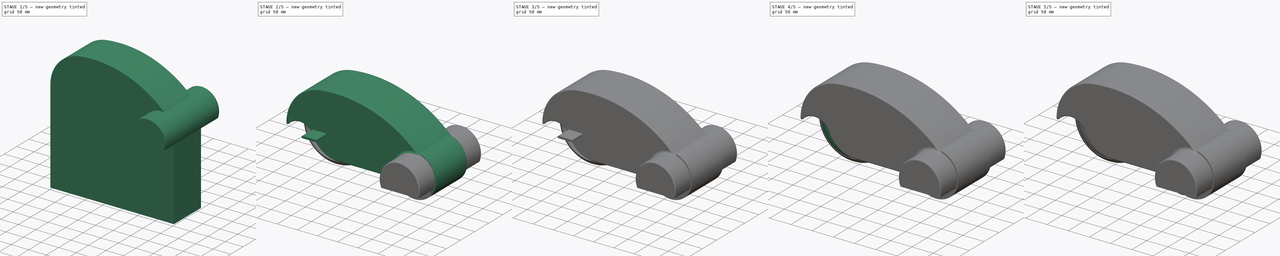
[diagram: build sequence overview — one tinted view per stage of 5, left to right]
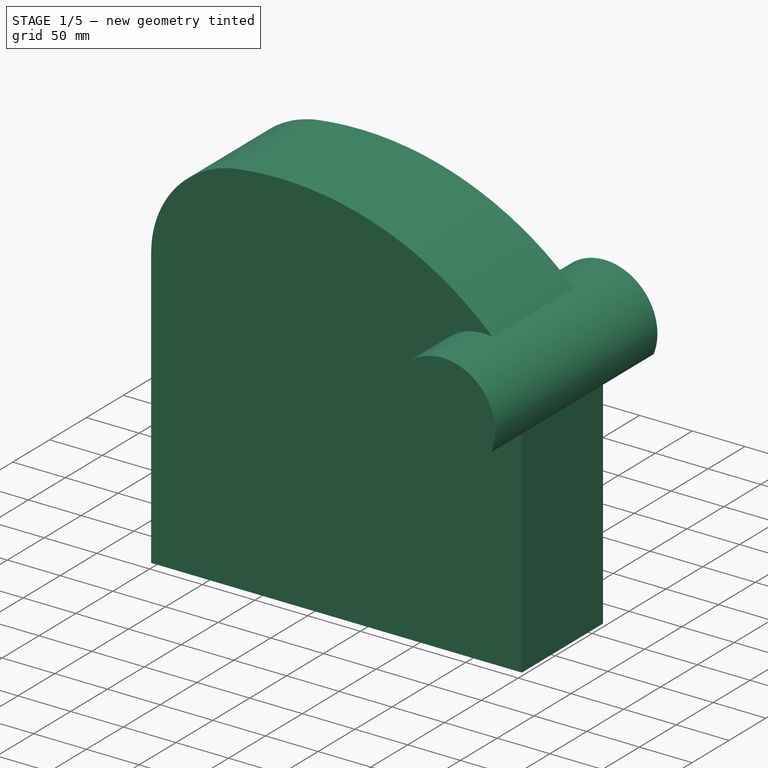
[diagram: stage 1 of 5 — iso view after this stage's code; geometry added in this stage tinted green]
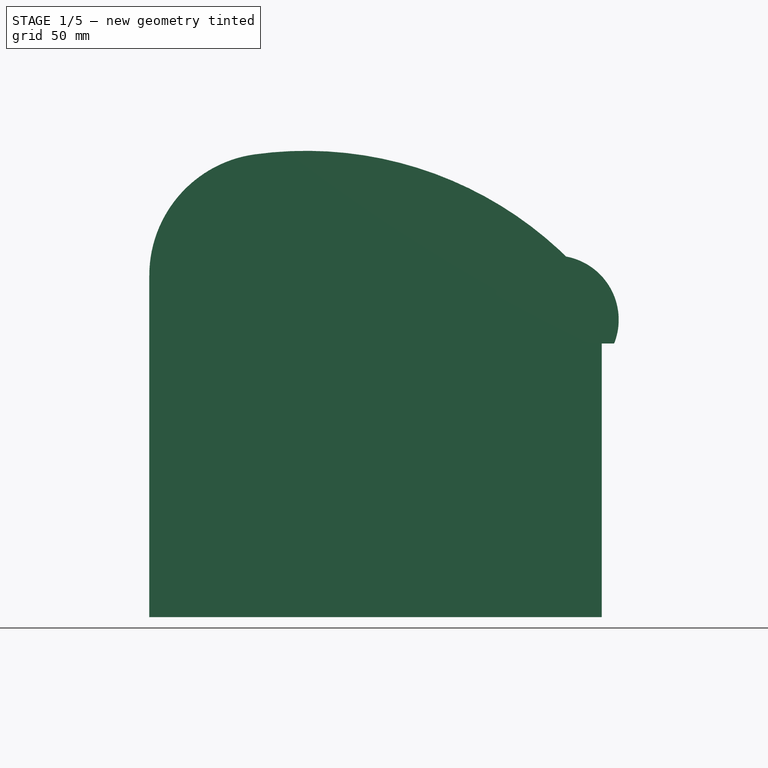
[diagram: stage 1 of 5 — front view after this stage's code; geometry added in this stage tinted green]
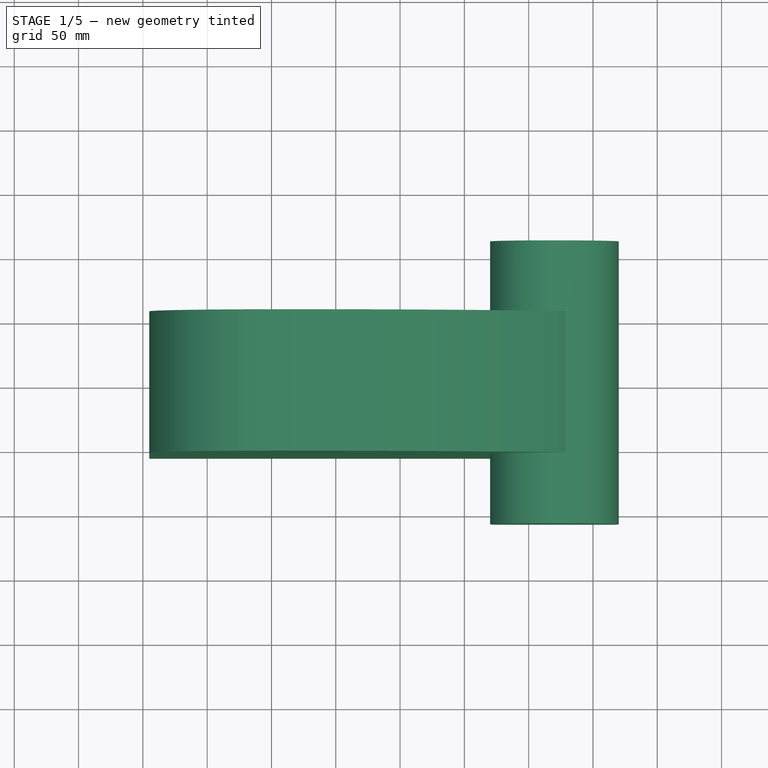
[diagram: stage 1 of 5 — top view after this stage's code; geometry added in this stage tinted green]
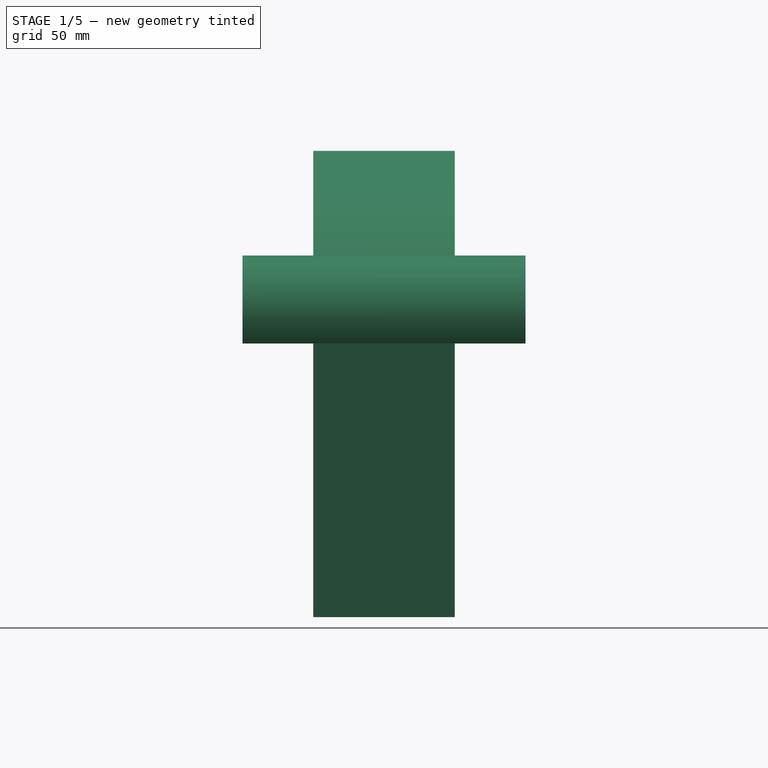
[diagram: stage 1 of 5 — right view after this stage's code; geometry added in this stage tinted green]
FCSTD DOCUMENT  (FreeCAD 0.16R6597 (Git))
Label: ameisin
License: All rights reserved
LicenseURL: http://en.wikipedia.org/wiki/All_rights_reserved
objects: Part::Cut×26, Part::Cylinder×25, Part::MultiFuse×16, Sketcher::SketchObject×14, PartDesign::Pad×14, Part::FeaturePython×9, Part::Box×9, Part::Fillet×8, Part::Mirroring×6, Part::Feature×3, Part::Torus×2, Part::MultiCommon×1, Part::Offset×1
note: 148 computed .brp shape members not serialized (recipe doc carries the construction recipe); baked Part::Feature solids carry a one-line shape summary decoded from their .brp

FEATURE [Part::Feature] Pocket006  label="MOTOR_1"
  Placement = pos=(123,-38.5,0) rot=(0,0,1;0rad)
  shape: bbox 25 x 73.5 x 25 mm, 17 faces (baked)
FEATURE [Part::Torus] Torus  label="Toro"
  Angle1 = -180
  Angle2 = 180
  Angle3 = 360
  Placement = pos=(0,0,0) rot=(1,0,0;1.5708rad)
  Radius1 = 50
  Radius2 = 35
FEATURE [Part::Cylinder] Cylinder  label="Cilindro"
  Angle = 360
  Height = 70
  Placement = pos=(0,35,0) rot=(1,0,0;1.5708rad)
  Radius = 50
FEATURE [Part::MultiFuse] Fusion
  Shapes = -> [Torus,Cylinder]
FEATURE [Sketcher::SketchObject] Sketch012
  Placement = pos=(0,0,0) rot=(1,0,0;1.5708rad)
  sketch-geometry (8):
    g0: ArcOfCircle CenterX=0 CenterY=0 CenterZ=0 NormalX=0 NormalY=0 NormalZ=1 Radius=95 StartAngle=1.709 EndAngle=3.14159
    g1: ArcOfCircle CenterX=220 CenterY=-34.5 CenterZ=0 NormalX=0 NormalY=0 NormalZ=1 Radius=40 StartAngle=5.88527 EndAngle=6.9652
    g2: ArcOfCircle CenterX=26.863 CenterY=-193.141 CenterZ=0 NormalX=0 NormalY=0 NormalZ=1 Radius=290 StartAngle=0.776078 EndAngle=1.70899
    g3: ArcOfCircle CenterX=37.568 CenterY=-182.634 CenterZ=0 NormalX=0 NormalY=0 NormalZ=1 Radius=275 StartAngle=0.682011 EndAngle=0.776078
    g4: ArcOfCircle CenterX=-64.8684 CenterY=-26.3076 CenterZ=0 NormalX=0 NormalY=0 NormalZ=1 Radius=40 StartAngle=0.385284 EndAngle=2.42385
    g5: Circle [constr] CenterX=0 CenterY=0 CenterZ=0 NormalX=0 NormalY=0 NormalZ=1 Radius=30
    g6: ArcOfCircle CenterX=29.6932 CenterY=12.0422 CenterZ=0 NormalX=0 NormalY=0 NormalZ=1 Radius=62.0422 StartAngle=3.52688 EndAngle=4.71239
    g7: LineSegment StartX=29.6932 StartY=-50 StartZ=0 EndX=256.875 EndY=-50 EndZ=0
  constraints (28):
    c: Coincident(g0,g-1)
    c: Coincident(g0,g2)
    c: Tangent(g2,g0)
    c: Radius(g0) = 95
    c: Coincident(g2,g3)
    c: Coincident(g1,g3)
    c: Tangent(g3,g1)
    c: DistanceY(g1) = -34.5
    c: DistanceX(g1) = 220
    c: Tangent(g3,g2)
    c: Radius(g3) = 275
    c: Radius(g2) = 290
    c: Radius(g1) = 40
    c: Coincident(g0,g4)
    c: PointOnObject(g0,g-1)
    c: Coincident(g5,g-1)
    c: Radius(g5) = 30
    c: Tangent(g4,g5)
    c: DistanceY(g1) = -50
    c: Coincident(g6,g4)
    c: Tangent(g6,g4)
    c: Coincident(g7,g6)
    c: Coincident(g7,g1)
    c: Horizontal(g7)
    c: Tangent(g7,g6)
    c: Tangent(g6,g5)
    c: Radius(g4) = 40
    c: DistanceY(g2) = 10
FEATURE [PartDesign::Pad] Pad015
  Length = 110
  Length2 = 100
  Midplane = true
  Placement = pos=(0,0,0) rot=(1,0,0;1.5708rad)
  Sketch = -> Sketch012
  Type = 0
FEATURE [Part::FeaturePython] Clone006  label="Clone of Pad015"  # Draft clone (typed FeaturePython)
  Objects = -> [Pad015]
  Placement = pos=(0,0,0) rot=(1,0,0;1.5708rad)
  Scale = (1,1,1)
FEATURE [Sketcher::SketchObject] Sketch013
  Placement = pos=(0,0,0) rot=(1,0,0;1.5708rad)
  sketch-geometry (11):
    g0: ArcOfCircle [constr] CenterX=0 CenterY=0 CenterZ=0 NormalX=0 NormalY=0 NormalZ=1 Radius=95 StartAngle=1.709 EndAngle=3.14159
    g1: ArcOfCircle [constr] CenterX=220 CenterY=-34.5 CenterZ=0 NormalX=0 NormalY=0 NormalZ=1 Radius=40 StartAngle=5.88527 EndAngle=6.9652
    g2: ArcOfCircle [constr] CenterX=26.863 CenterY=-193.141 CenterZ=0 NormalX=0 NormalY=0 NormalZ=1 Radius=290 StartAngle=0.776078 EndAngle=1.70899
    g3: ArcOfCircle [constr] CenterX=37.568 CenterY=-182.634 CenterZ=0 NormalX=0 NormalY=0 NormalZ=1 Radius=275 StartAngle=0.682011 EndAngle=0.776078
    g4: ArcOfCircle CenterX=-64.8684 CenterY=-26.3076 CenterZ=0 NormalX=0 NormalY=0 NormalZ=1 Radius=40 StartAngle=0.385284 EndAngle=2.42385
    g5: Circle [constr] CenterX=0 CenterY=0 CenterZ=0 NormalX=0 NormalY=0 NormalZ=1 Radius=30
    g6: ArcOfCircle CenterX=29.6932 CenterY=12.0422 CenterZ=0 NormalX=0 NormalY=0 NormalZ=1 Radius=62.0422 StartAngle=3.52688 EndAngle=4.71239
    g7: LineSegment StartX=29.6932 StartY=-50 StartZ=0 EndX=256.875 EndY=-50 EndZ=0
    g8: LineSegment StartX=-95 StartY=-2e-11 StartZ=0 EndX=-95 EndY=-265.777 EndZ=0
    g9: LineSegment StartX=-95 StartY=-265.777 StartZ=0 EndX=256.875 EndY=-265.777 EndZ=0
    g10: LineSegment StartX=256.875 StartY=-265.777 StartZ=0 EndX=256.875 EndY=-50 EndZ=0
  constraints (35):
    c: Coincident(g0,g-1)
    c: Coincident(g0,g2)
    c: Tangent(g2,g0)
    c: Radius(g0) = 95
    c: Coincident(g2,g3)
    c: Coincident(g1,g3)
    c: Tangent(g3,g1)
    c: DistanceY(g1) = -34.5
    c: DistanceX(g1) = 220
    c: Tangent(g3,g2)
    c: Radius(g3) = 275
    c: Radius(g2) = 290
    c: Radius(g1) = 40
    c: Coincident(g0,g4)
    c: PointOnObject(g0,g-1)
    c: Coincident(g5,g-1)
    c: Radius(g5) = 30
    c: Tangent(g4,g5)
    c: DistanceY(g1) = -50
    c: Coincident(g6,g4)
    c: Tangent(g6,g4)
    c: Coincident(g7,g6)
    c: Coincident(g7,g1)
    c: Horizontal(g7)
    c: Tangent(g7,g6)
    c: Tangent(g6,g5)
    c: Radius(g4) = 40
    c: DistanceY(g2) = 10
    c: Coincident(g8,g9)
    c: Horizontal(g9)
    c: Coincident(g9,g10)
    c: Vertical(g10)
    c: Vertical(g8)
    c: Coincident(g0,g8)
    c: Coincident(g1,g10)
FEATURE [PartDesign::Pad] Pad016
  Length = 110
  Length2 = 100
  Midplane = true
  Placement = pos=(0,0,0) rot=(1,0,0;1.5708rad)
  Sketch = -> Sketch013
  Type = 0
FEATURE [Part::Cylinder] Cylinder026  label="Cilindro026"
  Angle = 360
  Height = 214
  Placement = pos=(220,107,-34.5) rot=(1,0,0;1.5708rad)
  Radius = 47
FEATURE [Part::Cylinder] Cylinder025  label="Cilindro025"
  Angle = 360
  Height = 220
  Placement = pos=(220,110,-34.5) rot=(1,0,0;1.5708rad)
  Radius = 50
FEATURE [Part::Cut] Cut023
  Base = -> Cylinder025
  Tool = -> Cylinder026
FEATURE [Part::Box] Box016  label="Cubo008"
  Height = 86
  Length = 400
  Placement = pos=(0,-137,-139) rot=(0,0,1;0rad)
  Width = 400
FEATURE [Part::Cut] Cut026
  Base = -> Cut023
  Tool = -> Box016
FEATURE [Part::FeaturePython] Clone007  label="Clone of Clone of Pad015"  # Draft clone (typed FeaturePython)
  Objects = -> [Clone006]
  Placement = pos=(0,0,0) rot=(1,0,0;1.5708rad)
  Scale = (1,1,1)
FEATURE [Part::FeaturePython] Clone008  label="Clone of Pad016"  # Draft clone (typed FeaturePython)
  Objects = -> [Pad016]
  Placement = pos=(0,0,0) rot=(1,0,0;1.5708rad)
  Scale = (1,1,1)
FEATURE [Part::MultiFuse] Fusion019
  Shapes = -> [Clone008,Clone007]
FEATURE [Part::Torus] Torus001  label="Toro001"
  Angle1 = -180
  Angle2 = 180
  Angle3 = 360
  Placement = pos=(0,0,0) rot=(1,0,0;1.5708rad)
  Radius1 = 50
  Radius2 = 36
FEATURE [Part::Cylinder] Cylinder029  label="Cilindro029"
  Angle = 360
  Height = 86
  Placement = pos=(0,42,0) rot=(1,0,0;1.5708rad)
  Radius = 60
FEATURE [Part::FeaturePython] Clone009  label="Clone of Fusion"  # Draft clone (typed FeaturePython)
  Objects = -> [Fusion]
  Scale = (1,1,1)
FEATURE [Part::Cut] Cut028
  Base = -> Torus001
  Tool = -> Cylinder029
FEATURE [Part::Cut] Cut029
  Base = -> Cut028
  Tool = -> Clone009
FEATURE [Part::Cylinder] Cylinder030  label="Cilindro030"
  Angle = 360
  Height = 86
  Placement = pos=(0,-30,0) rot=(1,0,0;1.5708rad)
  Radius = 100
FEATURE [Part::Mirroring] Part__Mirroring005  label="Cilindro030 (Mirror #6)"
  Base = (0,0,0)
  Normal = (0,1,0)
  Source = -> Cylinder030
FEATURE [Part::MultiFuse] Fusion021
  Shapes = -> [Part__Mirroring005,Cylinder030]
FEATURE [Part::Cut] Cut030
  Base = -> Cut029
  Tool = -> Fusion021
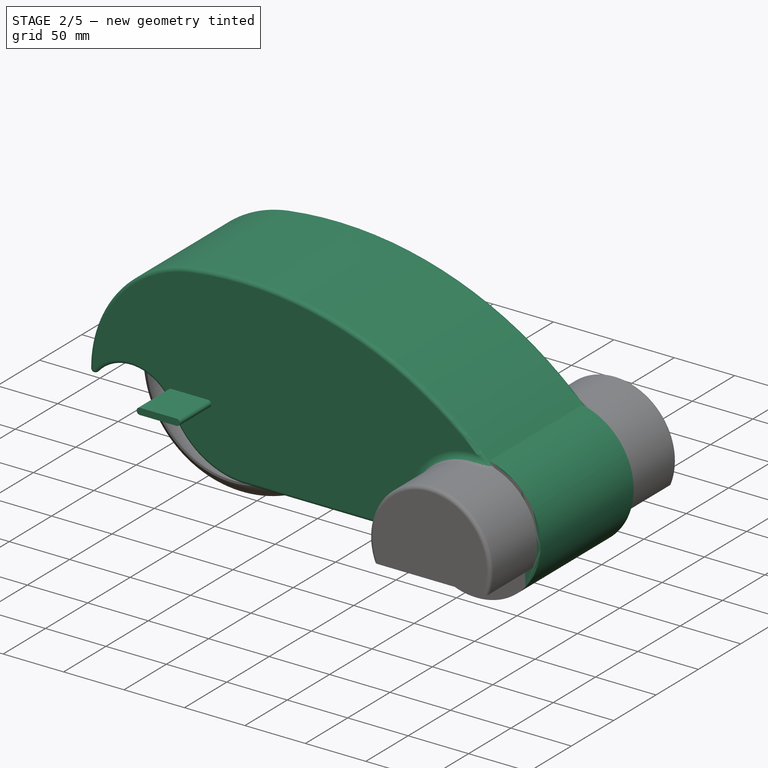
[diagram: stage 2 of 5 — iso view after this stage's code; geometry added in this stage tinted green]
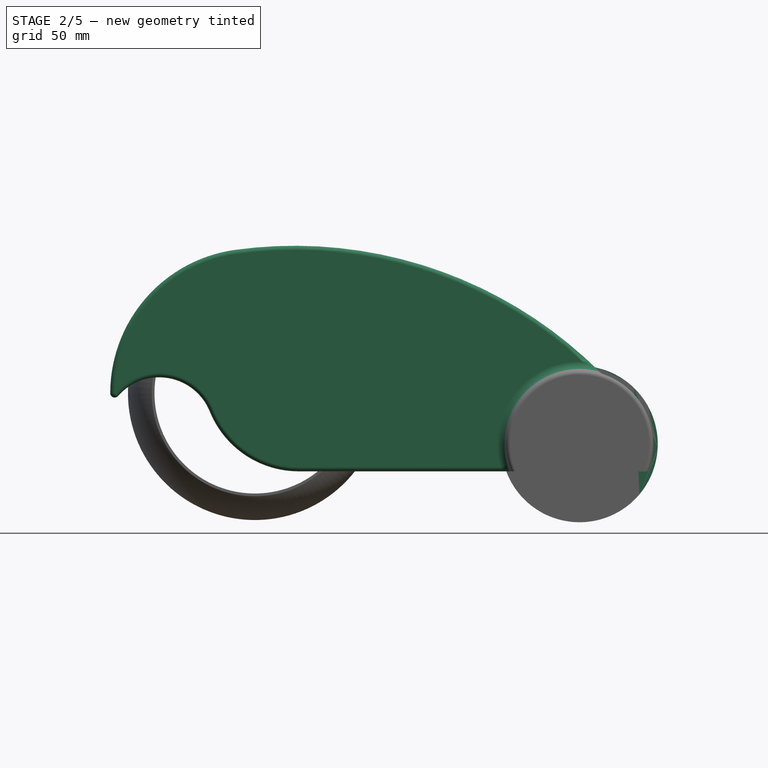
[diagram: stage 2 of 5 — front view after this stage's code; geometry added in this stage tinted green]
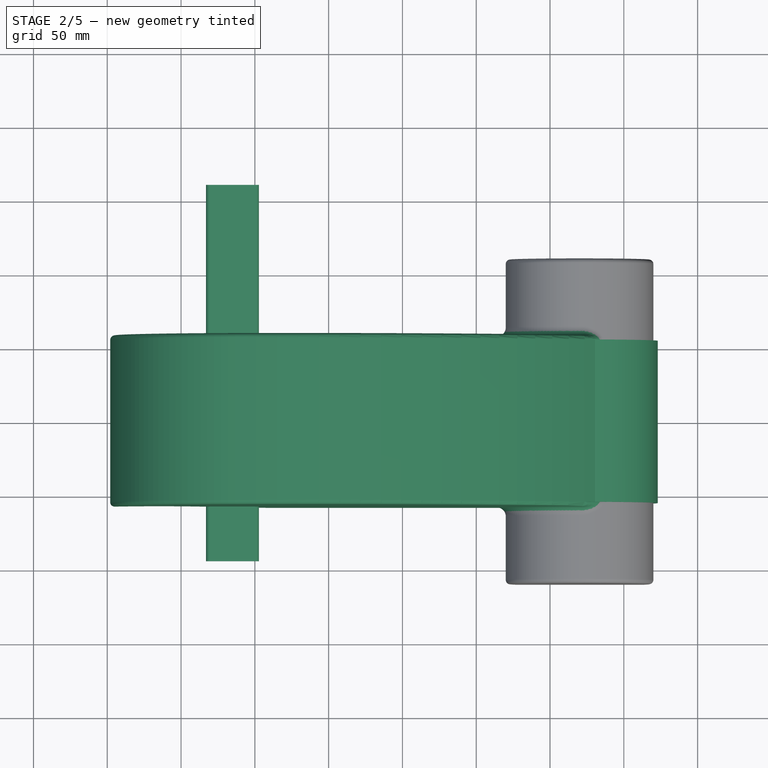
[diagram: stage 2 of 5 — top view after this stage's code; geometry added in this stage tinted green]
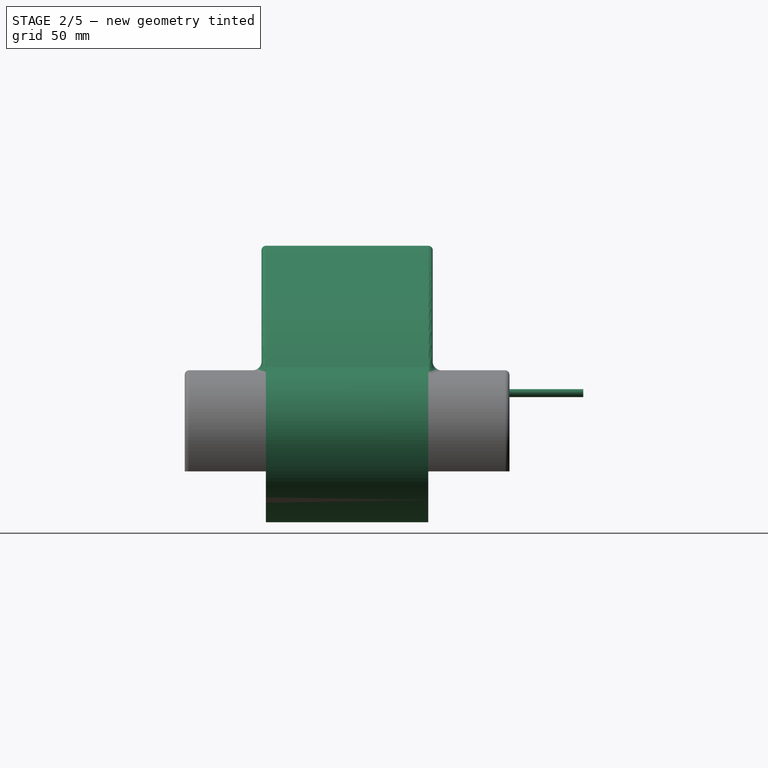
[diagram: stage 2 of 5 — right view after this stage's code; geometry added in this stage tinted green]
FEATURE [Sketcher::SketchObject] Sketch005
  sketch-geometry (7):
    g0: ArcOfCircle CenterX=220 CenterY=40 CenterZ=0 NormalX=0 NormalY=0 NormalZ=1 Radius=8 StartAngle=3.68351 EndAngle=6.28319
    g1: ArcOfCircle CenterX=200 CenterY=45 CenterZ=0 NormalX=0 NormalY=0 NormalZ=1 Radius=5 StartAngle=1.3057 EndAngle=5.02261
    g2: ArcOfCircle CenterX=204.579 CenterY=30.716 CenterZ=0 NormalX=0 NormalY=0 NormalZ=1 Radius=10 StartAngle=0.541916 EndAngle=1.88102
    g3: LineSegment StartX=228 StartY=58 StartZ=0 EndX=228 EndY=40 EndZ=0
    g4: Circle CenterX=200 CenterY=45 CenterZ=0 NormalX=0 NormalY=0 NormalZ=1 Radius=1.6
    g5: LineSegment StartX=228 StartY=58 StartZ=0 EndX=212 EndY=58 EndZ=0
    g6: ArcOfCircle CenterX=203.529 CenterY=58 CenterZ=0 NormalX=0 NormalY=0 NormalZ=1 Radius=8.4706 StartAngle=4.44729 EndAngle=6.28319
  constraints (24):
    c: DistanceX(g0) = 220
    c: DistanceY(g0) = 40
    c: Coincident(g2,g0)
    c: Tangent(g2,g0)
    c: Radius(g0) = 8
    c: Coincident(g2,g1)
    c: Tangent(g2,g1)
    c: Vertical(g3)
    c: Coincident(g0,g3)
    c: Tangent(g3,g0)
    c: Coincident(g4,g1)
    c: Radius(g4) = 1.6
    c: Radius(g1) = 5
    c: Distance(g3) = 18
    c: Radius(g2) = 10
    c: Horizontal(g5)
    c: Coincident(g1,g6)
    c: Tangent(g6,g1)
    c: Coincident(g5,g6)
    c: DistanceY(g1,g0) = -5
    c: Coincident(g3,g5)
    c: Distance(g5) = 16
    c: Perpendicular(g6,g5)
    c: DistanceX(g1,g0) = 20
FEATURE [PartDesign::Pad] Pad008
  Length = 14
  Length2 = 100
  Midplane = true
  Sketch = -> Sketch005
  Type = 0
FEATURE [Sketcher::SketchObject] Sketch006
  sketch-geometry (4):
    g0: LineSegment StartX=228 StartY=53 StartZ=0 EndX=178 EndY=53 EndZ=0
    g1: LineSegment StartX=178 StartY=53 StartZ=0 EndX=178 EndY=3 EndZ=0
    g2: LineSegment StartX=178 StartY=3 StartZ=0 EndX=228 EndY=3 EndZ=0
    g3: LineSegment StartX=228 StartY=3 StartZ=0 EndX=228 EndY=53 EndZ=0
  constraints (12):
    c: Coincident(g0,g1)
    c: Coincident(g1,g2)
    c: Coincident(g2,g3)
    c: Coincident(g3,g0)
    c: Horizontal(g0)
    c: Horizontal(g2)
    c: Vertical(g1)
    c: Vertical(g3)
    c: DistanceX(g0) = 228
    c: DistanceY(g0) = 53
    c: Distance(g0) = 50
    c: Distance(g1) = 50
FEATURE [PartDesign::Pad] Pad009
  Length = 6
  Length2 = 100
  Midplane = true
  Sketch = -> Sketch006
  Type = 0
FEATURE [Part::Cut] Cut005
  Base = -> Pad008
  Placement = pos=(0,0,-34.5) rot=(0,0,1;0rad)
  Tool = -> Pad009
FEATURE [Part::Cylinder] Cylinder010  label="Cilindro010"
  Angle = 360
  Height = 200
  Placement = pos=(220,100,-34.5) rot=(1,0,0;1.5708rad)
  Radius = 1.6
FEATURE [Part::Cut] Cut006
  Base = -> Cut005
  Tool = -> Cylinder010
FEATURE [Sketcher::SketchObject] Sketch010
  Placement = pos=(0,160,0) rot=(0,0.707107,0.707107;3.14159rad)
  sketch-geometry (4):
    g0: ArcOfCircle CenterX=0 CenterY=0 CenterZ=0 NormalX=0 NormalY=0 NormalZ=1 Radius=2.7 StartAngle=1.5708 EndAngle=4.71239
    g1: ArcOfCircle CenterX=30.4267 CenterY=0 CenterZ=0 NormalX=0 NormalY=0 NormalZ=1 Radius=2.7 StartAngle=4.71239 EndAngle=7.85398
    g2: LineSegment StartX=0 StartY=-2.7 StartZ=0 EndX=30.4267 EndY=-2.7 EndZ=0
    g3: LineSegment StartX=0 StartY=2.7 StartZ=0 EndX=30.4267 EndY=2.7 EndZ=0
  constraints (8):
    c: Tangent(g0,g3) = 1.5708
    c: Tangent(g0,g2) = -1.5708
    c: Tangent(g2,g1) = -1.5708
    c: Tangent(g3,g1) = 1.5708
    c: Equal(g0,g1)
    c: Coincident(g0,g-1)
    c: Radius(g0) = 2.7
    c: Horizontal(g3)
FEATURE [PartDesign::Pad] Pad013
  Length = 255
  Length2 = 100
  Placement = pos=(0,160,0) rot=(0,0.707107,0.707107;3.14159rad)
  Reversed = true
  Sketch = -> Sketch010
  Type = 0
FEATURE [Part::Cylinder] Cylinder022  label="Cilindro022"
  Angle = 360
  Height = 2
  Placement = pos=(0,-40,0) rot=(1,0,0;1.5708rad)
  Radius = 6
FEATURE [Part::Mirroring] Part__Mirroring003  label="Cilindro022 (Mirror #4)"
  Base = (0,0,0)
  Normal = (0,1,0)
  Source = -> Cylinder022
FEATURE [Part::Cylinder] Cylinder023  label="Cilindro023"
  Angle = 360
  Height = 75
  Placement = pos=(100,25,-41) rot=(0,0,1;0rad)
  Radius = 1.5
FEATURE [Part::Mirroring] Part__Mirroring004  label="Cilindro023 (Mirror #5)"
  Base = (0,0,0)
  Normal = (0,1,0)
  Source = -> Cylinder023
FEATURE [Part::MultiFuse] Fusion018
  Shapes = -> [Part__Mirroring004,Cylinder023]
FEATURE [Part::Cylinder] Cylinder024  label="Cilindro024"
  Angle = 360
  Height = 23
  Placement = pos=(220,40,-41.5) rot=(0,0,1;0rad)
  Radius = 1.6
FEATURE [Part::Cut] Cut020
  Base = -> Cut006
  Tool = -> Cylinder024
FEATURE [Part::Mirroring] Part__Mirroring  label="Cut020 (Mirror #5)"
  Base = (0,0,0)
  Normal = (0,1,0)
  Source = -> Cut020
FEATURE [Part::Offset] Offset
  Fill = false
  Intersection = false
  Join = 0
  Mode = 0
  SelfIntersection = false
  Source = -> Pad015
  Value = 3
FEATURE [Part::Cut] Cut021
  Base = -> Offset
  Tool = -> Clone006
FEATURE [Part::Cut] Cut022
  Base = -> Cut021
  Tool = -> Pad016
FEATURE [Part::Cylinder] Cylinder028  label="Cilindro028"
  Angle = 360
  Height = 133
  Placement = pos=(220,62,-34.5) rot=(1,0,0;1.5708rad)
  Radius = 47
FEATURE [Part::Cut] Cut025
  Base = -> Cut022
  Tool = -> Cylinder028
FEATURE [Part::Cylinder] Cylinder027  label="Cilindro027"
  Angle = 360
  Height = 110
  Placement = pos=(220,55,-34.5) rot=(1,0,0;1.5708rad)
  Radius = 53
FEATURE [Part::Cut] Cut027
  Base = -> Cut026
  Tool = -> Fusion019
FEATURE [Part::MultiFuse] Fusion020
  Shapes = -> [Cut025,Cut027]
FEATURE [Part::Fillet] Fillet006
  Base = -> Fusion020
  Edges = 1 edges r=6: [Edge7]
FEATURE [Part::Fillet] Fillet007
  Base = -> Fillet006
  Edges = 2 edges r=3: [Edge29,Edge34]
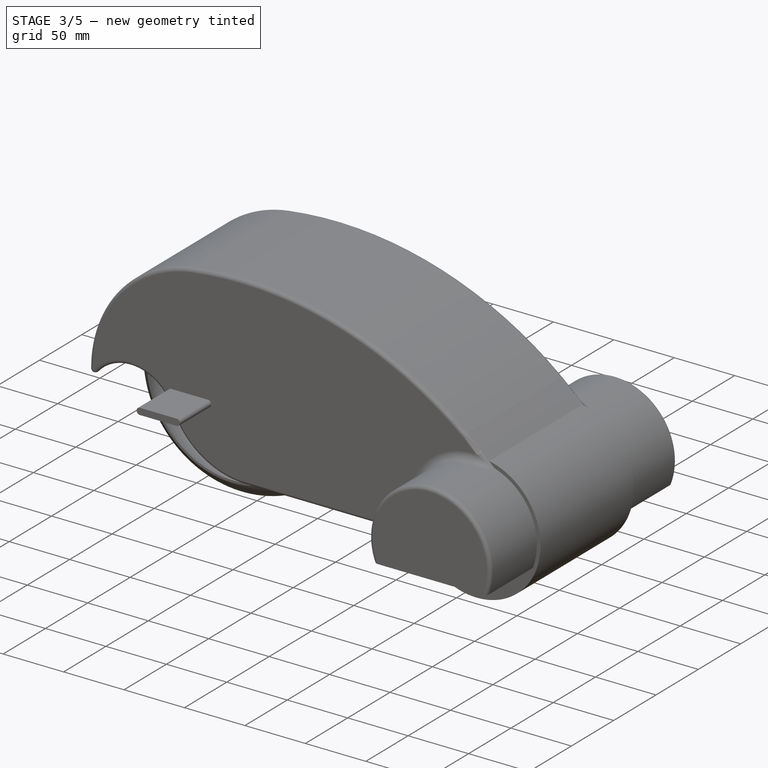
[diagram: stage 3 of 5 — iso view after this stage's code; geometry added in this stage tinted green]
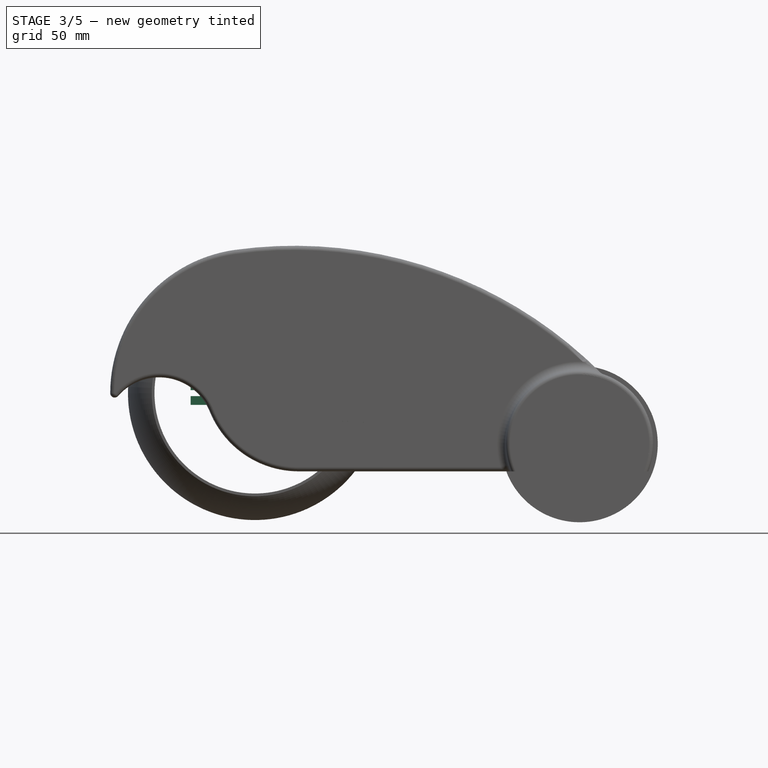
[diagram: stage 3 of 5 — front view after this stage's code; geometry added in this stage tinted green]
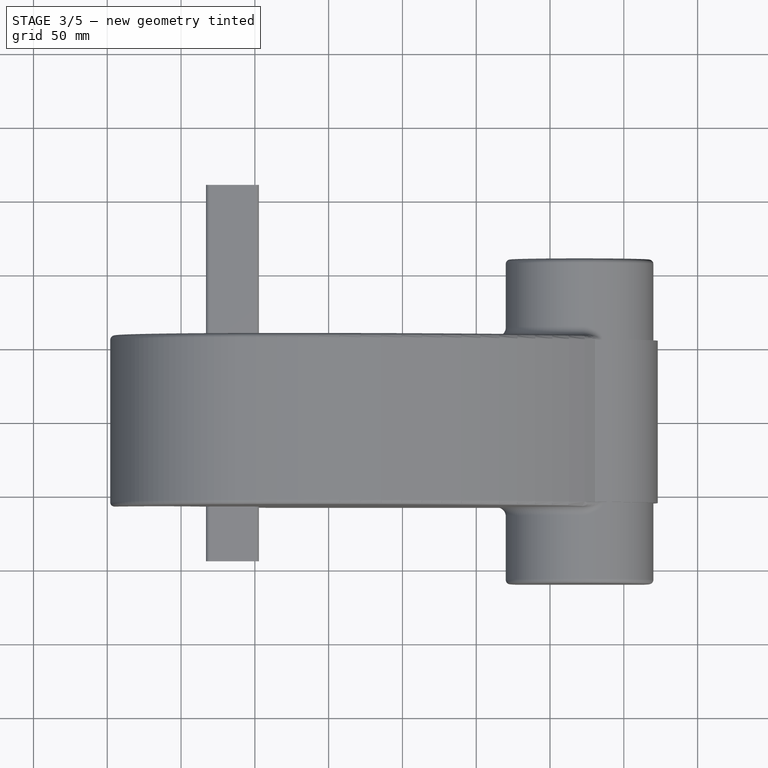
[diagram: stage 3 of 5 — top view after this stage's code; geometry added in this stage tinted green]
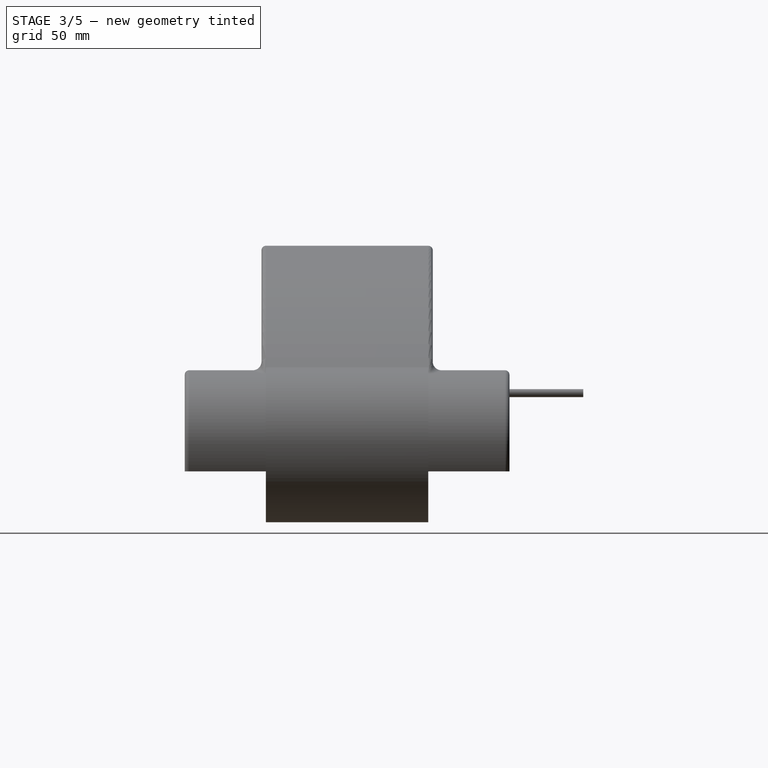
[diagram: stage 3 of 5 — right view after this stage's code; geometry added in this stage tinted green]
FEATURE [Sketcher::SketchObject] Sketch
  Placement = pos=(0,-35,0) rot=(1,0,0;1.5708rad)
  sketch-geometry (10):
    g0: Circle CenterX=0 CenterY=0 CenterZ=0 NormalX=0 NormalY=0 NormalZ=1 Radius=5.2
    g1: Circle CenterX=123 CenterY=0 CenterZ=0 NormalX=0 NormalY=0 NormalZ=1 Radius=4
    g2: ArcOfCircle CenterX=0 CenterY=0 CenterZ=0 NormalX=0 NormalY=0 NormalZ=1 Radius=16 StartAngle=1.6196 EndAngle=4.66359
    g3: LineSegment StartX=-0.780488 StartY=-15.981 StartZ=0 EndX=121.927 EndY=-21.9738 EndZ=0
    g4: LineSegment StartX=-0.780488 StartY=15.981 StartZ=0 EndX=121.927 EndY=21.9738 EndZ=0
    g5: LineSegment StartX=123 StartY=22 StartZ=0 EndX=145 EndY=22 EndZ=0
    g6: LineSegment StartX=145 StartY=22 StartZ=0 EndX=145 EndY=-22 EndZ=0
    g7: LineSegment StartX=145 StartY=-22 StartZ=0 EndX=123 EndY=-22 EndZ=0
    g8: ArcOfCircle CenterX=123 CenterY=0 CenterZ=0 NormalX=0 NormalY=0 NormalZ=1 Radius=22 StartAngle=1.57079 EndAngle=1.61959
    g9: ArcOfCircle CenterX=123 CenterY=0 CenterZ=0 NormalX=0 NormalY=0 NormalZ=1 Radius=22 StartAngle=4.66359 EndAngle=4.71239
  constraints (27):
    c: Coincident(g0,g-1)
    c: PointOnObject(g1,g-1)
    c: Distance(g-1,g1) = 123
    c: Tangent(g2,g4) = 1.5708
    c: Tangent(g2,g3) = -1.5708
    c: Coincident(g2,g-1)
    c: Radius(g1) = 4
    c: Radius(g0) = 5.2
    c: Radius(g2) = 16
    c: Horizontal(g5)
    c: Coincident(g5,g6)
    c: Vertical(g6)
    c: Coincident(g6,g7)
    c: Horizontal(g7)
    c: Coincident(g8,g1)
    c: Coincident(g9,g1)
    c: Coincident(g7,g9)
    c: Coincident(g8,g5)
    c: Tangent(g5,g8)
    c: Tangent(g9,g7)
    c: Radius(g9) = 22
    c: Coincident(g3,g9)
    c: Tangent(g9,g3)
    c: Coincident(g4,g8)
    c: Tangent(g8,g4)
    c: Radius(g8) = 22
    c: Distance(g1,g6) = 22
FEATURE [PartDesign::Pad] Pad
  Length = 10
  Length2 = 80
  Placement = pos=(0,-35,0) rot=(1,0,0;1.5708rad)
  Sketch = -> Sketch
  Type = 4
FEATURE [Sketcher::SketchObject] Sketch001
  Placement = pos=(0,0,50) rot=(0,0,1;0rad)
  sketch-geometry (8):
    g0: LineSegment StartX=-16 StartY=42 StartZ=0 EndX=-16 EndY=37 EndZ=0
    g1: LineSegment StartX=-16 StartY=37 StartZ=0 EndX=50 EndY=37 EndZ=0
    g2: ArcOfCircle CenterX=50 CenterY=0 CenterZ=0 NormalX=0 NormalY=0 NormalZ=1 Radius=37 StartAngle=4.71239 EndAngle=7.85398
    g3: LineSegment StartX=50 StartY=-37 StartZ=0 EndX=-16 EndY=-37 EndZ=0
    g4: LineSegment StartX=-16 StartY=-37 StartZ=0 EndX=-16 EndY=-42 EndZ=0
    g5: LineSegment StartX=-16 StartY=-42 StartZ=0 EndX=145 EndY=-42 EndZ=0
    g6: LineSegment StartX=145 StartY=-42 StartZ=0 EndX=145 EndY=42 EndZ=0
    g7: LineSegment StartX=145 StartY=42 StartZ=0 EndX=-16 EndY=42 EndZ=0
  constraints (25):
    c: Vertical(g0)
    c: Coincident(g0,g1)
    c: Horizontal(g1)
    c: Coincident(g1,g2)
    c: Tangent(g1,g2)
    c: Radius(g2) = 37
    c: PointOnObject(g2,g-1)
    c: Horizontal(g3)
    c: Coincident(g3,g4)
    c: Vertical(g4)
    c: Coincident(g2,g3)
    c: Tangent(g2,g3)
    c: DistanceX(g2) = 50
    c: DistanceX(g3) = -16
    c: Symmetric(g0,g3,g-1)
    c: Equal(g0,g4)
    c: Coincident(g4,g5)
    c: Horizontal(g5)
    c: Coincident(g5,g6)
    c: Vertical(g6)
    c: Coincident(g6,g7)
    c: Horizontal(g7)
    c: Coincident(g0,g7)
    c: Distance(g4) = 5
    c: DistanceX(g5) = 145
FEATURE [PartDesign::Pad] Pad001
  Length = 100
  Length2 = 100
  Placement = pos=(0,0,50) rot=(0,0,1;0rad)
  Reversed = true
  Sketch = -> Sketch001
  Type = 0
FEATURE [Part::Cylinder] Cylinder002  label="Cilindro002"
  Angle = 360
  Height = 100
  Placement = pos=(123,0,8.5) rot=(1,0,0;1.5708rad)
  Radius = 1.6
FEATURE [Part::FeaturePython] Clone  label="Clone of Cilindro002"  # Draft clone (typed FeaturePython)
  Objects = -> [Cylinder002]
  Placement = pos=(123,0,-8.5) rot=(1,0,0;1.5708rad)
  Scale = (1,1,1)
FEATURE [Part::MultiFuse] Fusion001
  Shapes = -> [Cylinder002,Clone]
FEATURE [Sketcher::SketchObject] Sketch002
  Placement = pos=(0,-39,0) rot=(1,0,0;1.5708rad)
  sketch-geometry (4):
    g0: ArcOfCircle CenterX=123 CenterY=0 CenterZ=0 NormalX=0 NormalY=0 NormalZ=1 Radius=13 StartAngle=3.14159 EndAngle=6.28319
    g1: ArcOfCircle CenterX=123 CenterY=50 CenterZ=0 NormalX=0 NormalY=0 NormalZ=1 Radius=13 StartAngle=0 EndAngle=3.14159
    g2: LineSegment StartX=136 StartY=0 StartZ=0 EndX=136 EndY=50 EndZ=0
    g3: LineSegment StartX=110 StartY=0 StartZ=0 EndX=110 EndY=50 EndZ=0
  constraints (10):
    c: Tangent(g0,g3) = 1.5708
    c: Tangent(g0,g2) = -1.5708
    c: Tangent(g2,g1) = -1.5708
    c: Tangent(g3,g1) = 1.5708
    c: Vertical(g2)
    c: Equal(g0,g1)
    c: PointOnObject(g0,g-1)
    c: DistanceX(g0) = 123
    c: Radius(g0) = 13
    c: Distance(g2) = 50
FEATURE [PartDesign::Pad] Pad002
  Length = 70
  Length2 = 100
  Placement = pos=(0,-39,0) rot=(1,0,0;1.5708rad)
  Reversed = true
  Sketch = -> Sketch002
  Type = 0
FEATURE [Part::Cut] Cut
  Base = -> Pad
  Tool = -> Pad002
FEATURE [Part::MultiCommon] Common
  Shapes = -> [Pad001,Cut]
FEATURE [Part::Cut] Cut001
  Base = -> Common
  Tool = -> Fusion001
FEATURE [Part::Box] Box010  label="Cube008"
  Height = 6
  Length = 3
  Placement = pos=(23,-20,2) rot=(0,0,1;1.5708rad)
  Width = 12
FEATURE [Part::Box] Box011  label="Cube009"
  Height = 6
  Length = 3
  Placement = pos=(-31.5,-20,2) rot=(0,0,1;1.5708rad)
  Width = 12
FEATURE [Part::Box] Box012  label="Cube010"
  Height = 6
  Length = 3
  Placement = pos=(-31.5,-20,-8) rot=(0,0,1;1.5708rad)
  Width = 12
FEATURE [Part::Box] Box  label="Cubo"
  Height = 56
  Length = 31
  Placement = pos=(145,-16,-34) rot=(0,0,1;0rad)
  Width = 32
FEATURE [Part::Box] Box013  label="Cubo005"
  Height = 41
  Length = 31
  Placement = pos=(147.5,-16,-26.75) rot=(0,0,1;0rad)
  Width = 23
FEATURE [Part::Box] Box014  label="Cubo006"
  Height = 56
  Length = 5
  Placement = pos=(150.5,-20,-26.75) rot=(0,0,1;0rad)
  Width = 26.5
FEATURE [Sketcher::SketchObject] Sketch003
  Placement = pos=(0,0,-32) rot=(0,0,1;0rad)
  sketch-geometry (10):
    g0: ArcOfCircle CenterX=220 CenterY=40 CenterZ=0 NormalX=0 NormalY=0 NormalZ=1 Radius=8 StartAngle=0 EndAngle=3.08279
    g1: ArcOfCircle CenterX=220 CenterY=-40 CenterZ=0 NormalX=0 NormalY=0 NormalZ=1 Radius=8 StartAngle=3.2004 EndAngle=6.28319
    g2: LineSegment StartX=228 StartY=40 StartZ=0 EndX=228 EndY=-40 EndZ=0
    g3: ArcOfCircle CenterX=185 CenterY=42.0606 CenterZ=0 NormalX=0 NormalY=0 NormalZ=1 Radius=27.0606 StartAngle=4.71239 EndAngle=6.22438
    g4: ArcOfCircle CenterX=185 CenterY=-42.0606 CenterZ=0 NormalX=0 NormalY=0 NormalZ=1 Radius=27.0606 StartAngle=0.0588066 EndAngle=1.5708
    g5: Circle CenterX=220 CenterY=40 CenterZ=0 NormalX=0 NormalY=0 NormalZ=1 Radius=1.5
    g6: Circle CenterX=220 CenterY=-40 CenterZ=0 NormalX=0 NormalY=0 NormalZ=1 Radius=1.5
    g7: LineSegment StartX=185 StartY=15 StartZ=0 EndX=135 EndY=15 EndZ=0
    g8: LineSegment StartX=135 StartY=15 StartZ=0 EndX=135 EndY=-15 EndZ=0
    g9: LineSegment StartX=135 StartY=-15 StartZ=0 EndX=185 EndY=-15 EndZ=0
  constraints (29):
    c: Tangent(g0,g2) = 1.5708
    c: Tangent(g2,g1) = 1.5708
    c: Equal(g0,g1)
    c: Symmetric(g0,g1,g-1)
    c: Coincident(g0,g3)
    c: Coincident(g4,g1)
    c: Tangent(g4,g1)
    c: Tangent(g3,g0)
    c: Equal(g4,g3)
    c: Symmetric(g0,g1,g-1)
    c: DistanceY(g0) = 40
    c: Radius(g0) = 8
    c: Coincident(g5,g0)
    c: Coincident(g6,g1)
    c: Radius(g6) = 1.5
    c: Equal(g6,g5)
    c: DistanceX(g0) = 220
    c: Horizontal(g7)
    c: Coincident(g7,g8)
    c: Vertical(g8)
    c: Coincident(g8,g9)
    c: Horizontal(g9)
    c: Coincident(g4,g9)
    c: Coincident(g3,g7)
    c: Distance(g9) = 50
    c: DistanceX(g3) = 185
    c: Equal(g7,g9)
    c: Tangent(g7,g3)
    c: DistanceY(g8) = -15
FEATURE [Sketcher::SketchObject] Sketch004
  Placement = pos=(0,-15,0) rot=(1,0,0;1.5708rad)
  sketch-geometry (4):
    g0: LineSegment StartX=145 StartY=-37 StartZ=0 EndX=145 EndY=-19 EndZ=0
    g1: LineSegment StartX=145 StartY=-19 StartZ=0 EndX=105 EndY=-19 EndZ=0
    g2: LineSegment StartX=105 StartY=-19 StartZ=0 EndX=135 EndY=-37 EndZ=0
    g3: LineSegment StartX=135 StartY=-37 StartZ=0 EndX=145 EndY=-37 EndZ=0
  constraints (12):
    c: Vertical(g0)
    c: Coincident(g0,g1)
    c: Horizontal(g1)
    c: Coincident(g1,g2)
    c: Coincident(g2,g3)
    c: Horizontal(g3)
    c: Coincident(g0,g3)
    c: DistanceY(g0) = -37
    c: DistanceX(g0) = 145
    c: DistanceY(g0) = -19
    c: Distance(g1) = 40
    c: Distance(g3) = 10
FEATURE [PartDesign::Pad] Pad006
  Length = 30
  Length2 = 100
  Placement = pos=(0,-15,0) rot=(1,0,0;1.5708rad)
  Reversed = true
  Sketch = -> Sketch004
  Type = 0
FEATURE [PartDesign::Pad] Pad007
  Length = 5
  Length2 = 100
  Placement = pos=(0,0,-32) rot=(0,0,1;0rad)
  Reversed = true
  Sketch = -> Sketch003
  Type = 0
FEATURE [Part::MultiFuse] Fusion011
  Shapes = -> [Pad007,Pad006]
FEATURE [Part::Fillet] Fillet
  Base = -> Fusion011
  Edges = 1 edges r=12.5: [Edge14]
FEATURE [Part::Fillet] Fillet001
  Base = -> Fillet
  Edges = 1 edges r=12: [Edge40]
FEATURE [Part::MultiFuse] Fusion012
  Shapes = -> [Fillet001,Cut001]
FEATURE [Part::Fillet] Fillet002
  Base = -> Fusion012
  Edges = 2 edges r=5: [Edge16,Edge27]
FEATURE [Part::MultiFuse] Fusion017
  Shapes = -> [Pad013,Part__Mirroring003,Cylinder022]
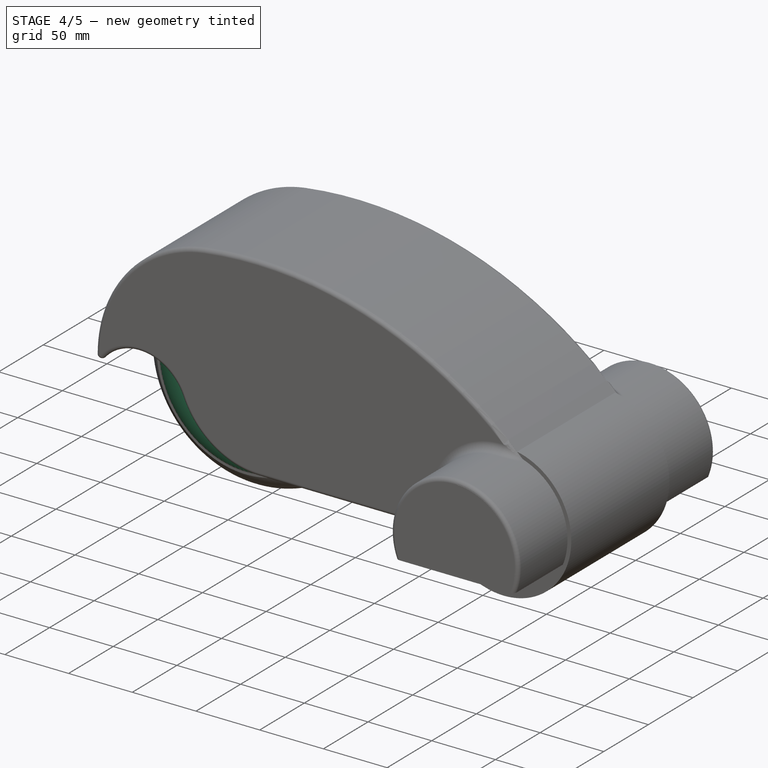
[diagram: stage 4 of 5 — iso view after this stage's code; geometry added in this stage tinted green]
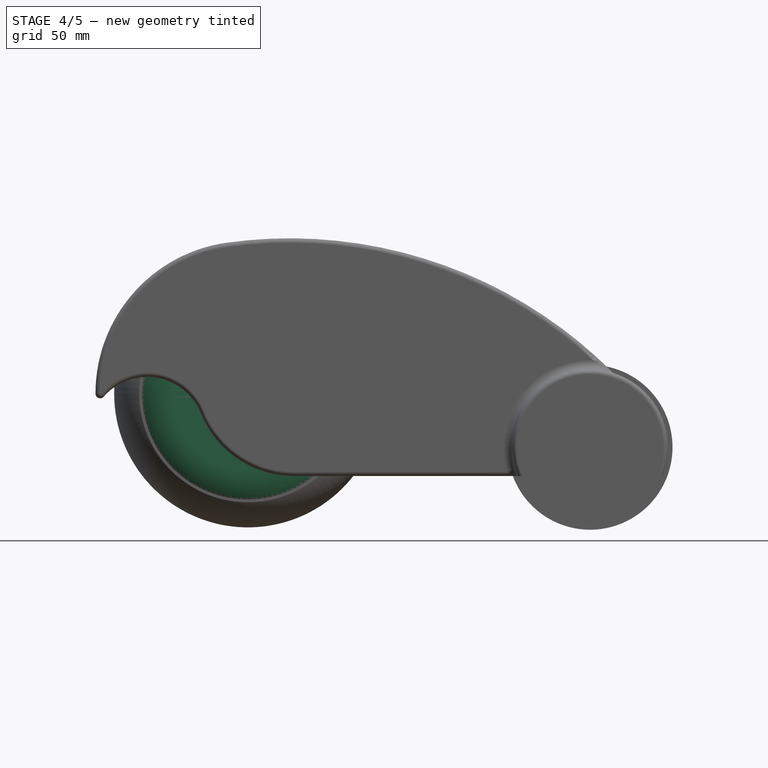
[diagram: stage 4 of 5 — front view after this stage's code; geometry added in this stage tinted green]
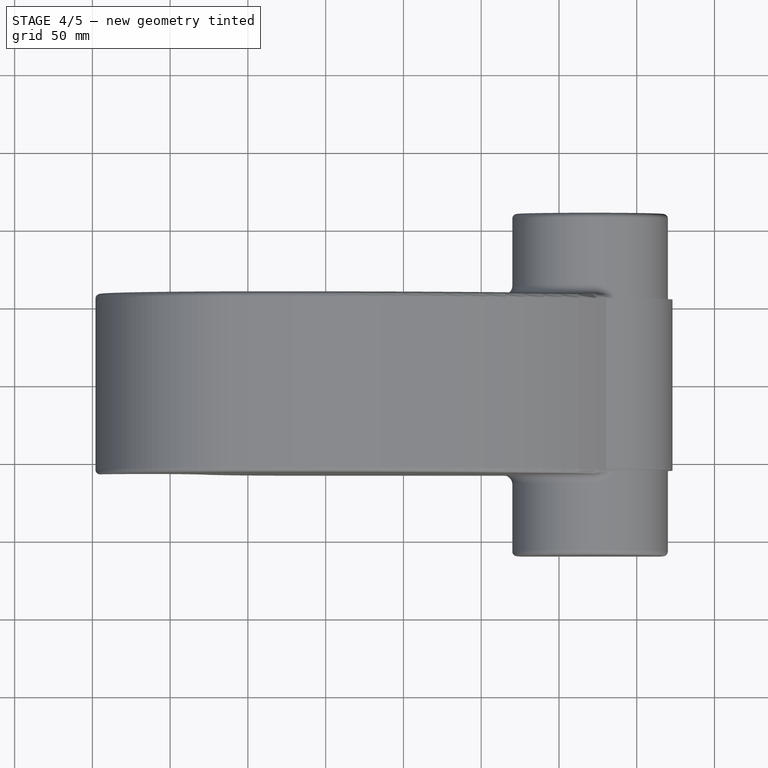
[diagram: stage 4 of 5 — top view after this stage's code; geometry added in this stage tinted green]
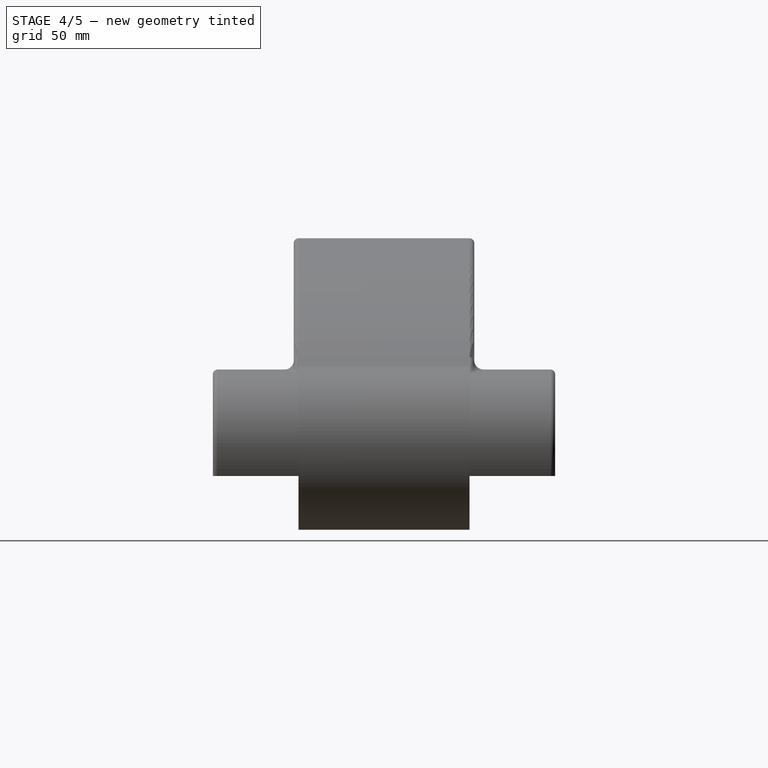
[diagram: stage 4 of 5 — right view after this stage's code; geometry added in this stage tinted green]
FEATURE [Part::Cylinder] Cylinder001  label="Cilindro001"
  Angle = 360
  Height = 200
  Placement = pos=(0,100,0) rot=(1,0,0;1.5708rad)
  Radius = 2.4
FEATURE [Part::Feature] Fusion005
  Placement = pos=(0,0,0) rot=(0,-0.707107,0.707107;3.14159rad)
  shape: bbox 57.75 x 44.8 x 20 mm, 250 faces, 4 solids (baked)
FEATURE [Part::Cylinder] Cylinder006  label="Cilindro006"
  Angle = 360
  Height = 50
  Placement = pos=(-34.75,0,7) rot=(1,0,0;1.5708rad)
  Radius = 1.75
FEATURE [Part::Cylinder] Cylinder007  label="Cilindro007"
  Angle = 360
  Height = 50
  Placement = pos=(14.25,0,7) rot=(1,0,0;1.5708rad)
  Radius = 1.75
FEATURE [Part::Cylinder] Cylinder008  label="Cilindro008"
  Angle = 360
  Height = 50
  Placement = pos=(-34.75,0,17) rot=(1,0,0;1.5708rad)
  Radius = 1.75
FEATURE [Part::Cylinder] Cylinder009  label="Cilindro009"
  Angle = 360
  Height = 50
  Placement = pos=(14.25,0,17) rot=(1,0,0;1.5708rad)
  Radius = 1.75
FEATURE [Part::MultiFuse] Fusion003
  Placement = pos=(0,-10,-12) rot=(0,0,1;0rad)
  Shapes = -> [Cylinder008,Cylinder009,Cylinder007,Cylinder006]
FEATURE [Part::Box] Box004  label="Cubo004"
  Height = 21
  Length = 41
  Placement = pos=(-30.75,-45,-10.5) rot=(0,0,1;0rad)
  Width = 45.5
FEATURE [Part::Box] Box009  label="Cube007"
  Height = 6
  Length = 3
  Placement = pos=(23,-20,-8) rot=(0,0,1;1.5708rad)
  Width = 12
FEATURE [Part::MultiFuse] Fusion009  label="nuts_room"
  Placement = pos=(0,-3,0) rot=(0,0,1;0rad)
  Shapes = -> [Box011,Box012,Box010,Box009]
FEATURE [Part::MultiFuse] Fusion010
  Shapes = -> [Box004,Fusion003,Fusion009]
FEATURE [Part::FeaturePython] Clone003  label="Clone of Fusion010"  # Draft clone (typed FeaturePython)
  Objects = -> [Fusion010]
  Placement = pos=(148,0,4) rot=(0.57735,-0.57735,0.57735;2.0944rad)
  Scale = (1,1,1)
FEATURE [Part::Cut] Cut002
  Base = -> Box
  Tool = -> Clone003
FEATURE [Part::Cut] Cut003
  Base = -> Cut002
  Tool = -> Box013
FEATURE [Part::Cut] Cut004
  Base = -> Cut003
  Placement = pos=(179,0,167) rot=(0,1,0;1.5708rad)
  Tool = -> Box014
FEATURE [Part::MultiFuse] Fusion013
  Shapes = -> [Fillet002,Cut004]
FEATURE [Part::Fillet] Fillet003
  Base = -> Fusion013
  Edges = 2 edges r=6: [Edge38,Edge40]
FEATURE [Part::Cylinder] Cylinder017  label="Cilindro017"
  Angle = 360
  Height = 73
  Placement = pos=(0,36.5,0) rot=(1,0,0;1.5708rad)
  Radius = 20
FEATURE [Part::MultiFuse] Fusion016
  Shapes = -> [Fusion,Cylinder017]
FEATURE [Part::Cut] Cut011
  Base = -> Fusion016
  Tool = -> Cylinder001
FEATURE [Part::Cylinder] Cylinder018  label="Cilindro018"
  Angle = 360
  Height = 68.5
  Placement = pos=(0,100,0) rot=(1,0,0;1.5708rad)
  Radius = 10
FEATURE [Part::Cut] Cut012
  Base = -> Cut011
  Tool = -> Cylinder018
FEATURE [Sketcher::SketchObject] Sketch011
  Placement = pos=(0,-36.5,0) rot=(1,0,0;1.5708rad)
  sketch-geometry (7):
    g0: LineSegment StartX=4.6188 StartY=0 StartZ=0 EndX=2.3094 EndY=4 EndZ=0
    g1: LineSegment StartX=2.3094 StartY=4 StartZ=0 EndX=-2.3094 EndY=4 EndZ=0
    g2: LineSegment StartX=-2.3094 StartY=4 StartZ=0 EndX=-4.6188 EndY=0 EndZ=0
    g3: LineSegment StartX=-4.6188 StartY=0 StartZ=0 EndX=-2.3094 EndY=-4 EndZ=0
    g4: LineSegment StartX=-2.3094 StartY=-4 StartZ=0 EndX=2.3094 EndY=-4 EndZ=0
    g5: LineSegment StartX=2.3094 StartY=-4 StartZ=0 EndX=4.6188 EndY=0 EndZ=0
    g6: Circle [constr] CenterX=0 CenterY=0 CenterZ=0 NormalX=0 NormalY=0 NormalZ=1 Radius=4.6188
  constraints (16):
    c: Coincident(g0,g1)
    c: Coincident(g1,g2)
    c: Coincident(g2,g3)
    c: Coincident(g3,g4)
    c: Coincident(g4,g5)
    c: Coincident(g5,g0)
    c: Equal(g0, g1-g5) x5
    c: PointOnObject(g0,g6)
    c: PointOnObject(g1,g6)
    c: PointOnObject(g2,g6)
    c: PointOnObject(g3,g6)
    c: PointOnObject(g4,g6)
    c: PointOnObject(g5,g6)
    c: Coincident(g6,g-1)
    c: DistanceY(g0) = 4
    c: Horizontal(g1)
FEATURE [PartDesign::Pad] Pad014
  Length = 5
  Length2 = 100
  Placement = pos=(0,-36.5,0) rot=(1,0,0;1.5708rad)
  Reversed = true
  Sketch = -> Sketch011
  Type = 0
FEATURE [Part::Cut] Cut018
  Base = -> Fillet003
  Tool = -> Fusion017
FEATURE [Part::Cut] Cut019
  Base = -> Cut018
  Tool = -> Fusion018
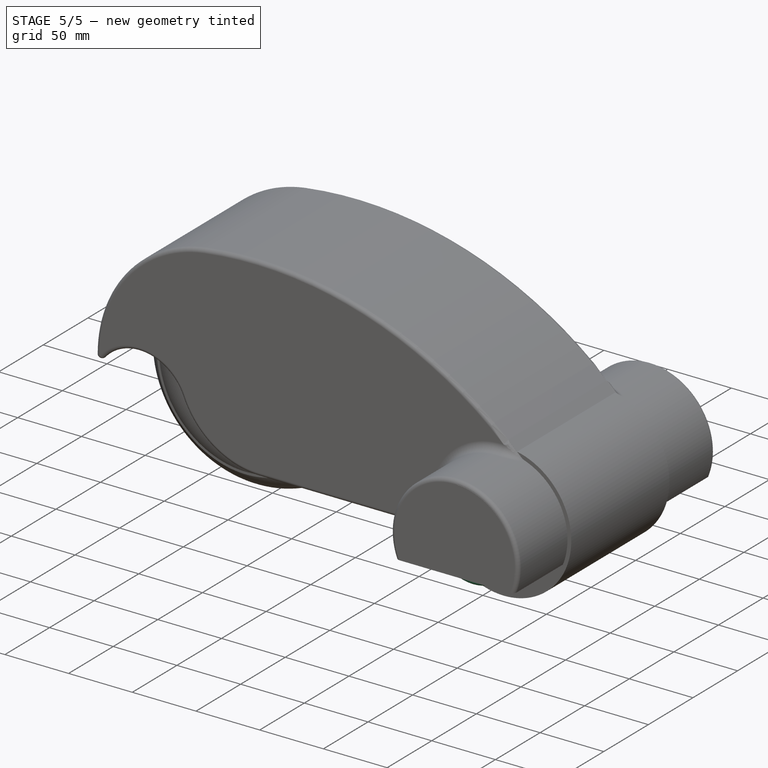
[diagram: stage 5 of 5 — iso view after this stage's code; geometry added in this stage tinted green]
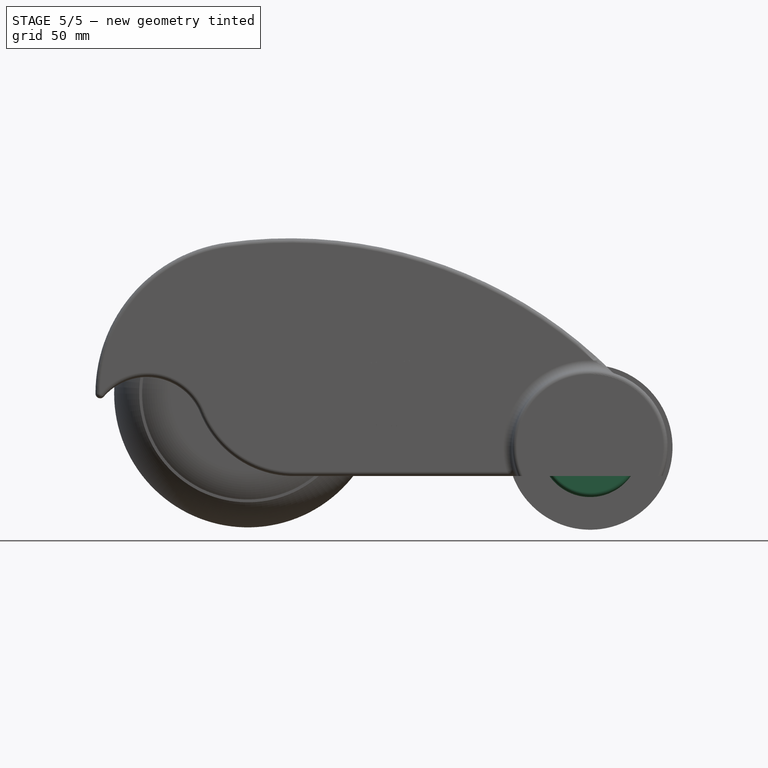
[diagram: stage 5 of 5 — front view after this stage's code; geometry added in this stage tinted green]
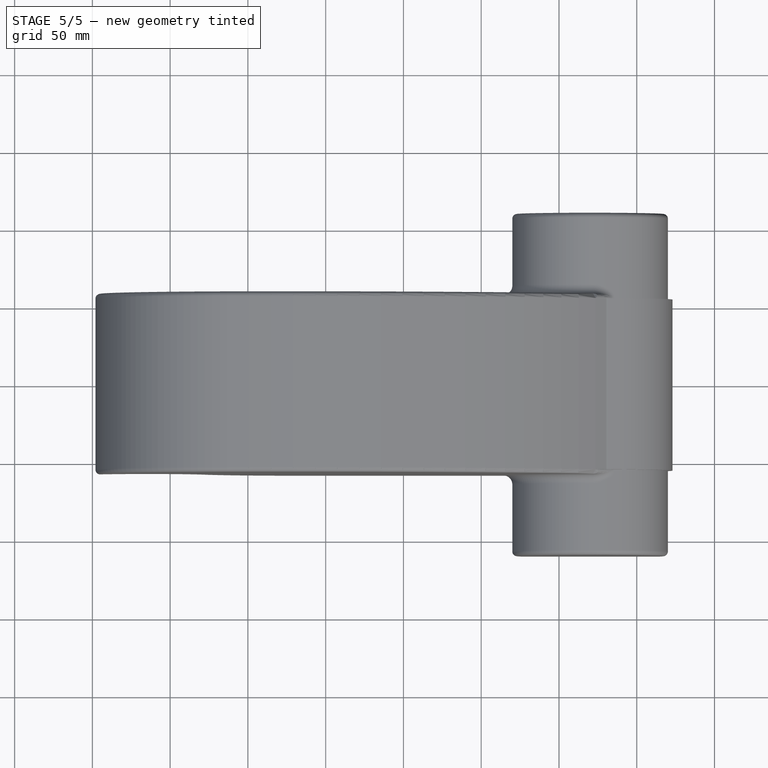
[diagram: stage 5 of 5 — top view after this stage's code; geometry added in this stage tinted green]
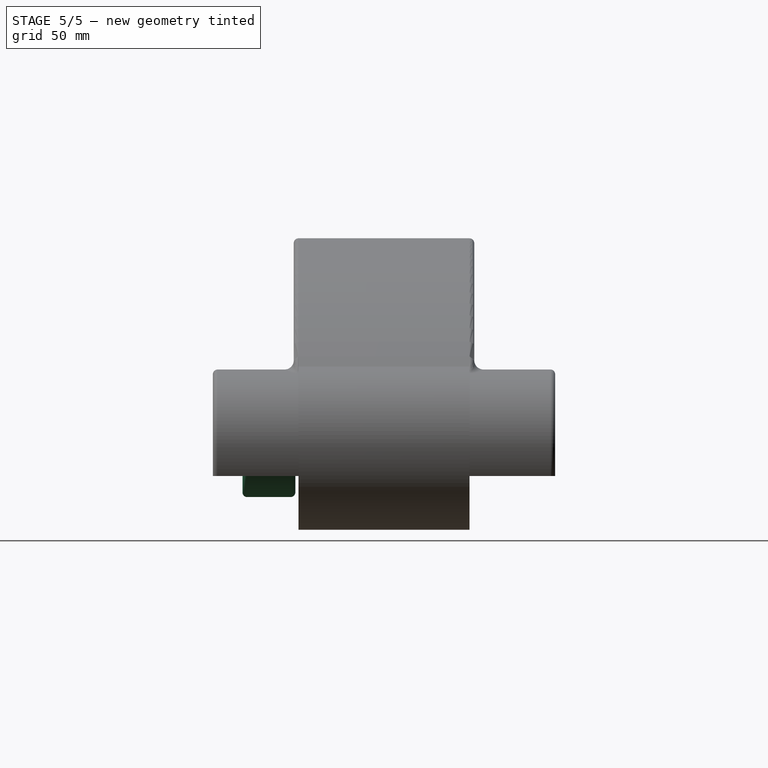
[diagram: stage 5 of 5 — right view after this stage's code; geometry added in this stage tinted green]
FEATURE [Part::FeaturePython] Clone002  label="Clone of Fusion005"  # Draft clone (typed FeaturePython)
  Objects = -> [Fusion005]
  Placement = pos=(183,0,19) rot=(0,1,0;3.14159rad)
  Scale = (1,1,1)
FEATURE [Sketcher::SketchObject] Sketch007
  Placement = pos=(0,0,-41.5) rot=(0,0,1;0rad)
  sketch-geometry (13):
    g0: ArcOfCircle [constr] CenterX=220 CenterY=40 CenterZ=0 NormalX=0 NormalY=0 NormalZ=1 Radius=8 StartAngle=3.68351 EndAngle=6.28319
    g1: ArcOfCircle [constr] CenterX=200 CenterY=45 CenterZ=0 NormalX=0 NormalY=0 NormalZ=1 Radius=5 StartAngle=1.30569 EndAngle=5.02261
    g2: ArcOfCircle [constr] CenterX=204.579 CenterY=30.716 CenterZ=0 NormalX=0 NormalY=0 NormalZ=1 Radius=10 StartAngle=0.541916 EndAngle=1.88101
    g3: LineSegment [constr] StartX=228 StartY=58 StartZ=0 EndX=228 EndY=40 EndZ=0
    g4: Circle [constr] CenterX=200 CenterY=45 CenterZ=0 NormalX=0 NormalY=0 NormalZ=1 Radius=1.6
    g5: LineSegment [constr] StartX=228 StartY=58 StartZ=0 EndX=212 EndY=58 EndZ=0
    g6: ArcOfCircle [constr] CenterX=203.529 CenterY=58 CenterZ=0 NormalX=0 NormalY=0 NormalZ=1 Radius=8.47059 StartAngle=4.44729 EndAngle=6.28319
    g7: ArcOfCircle CenterX=200 CenterY=-45 CenterZ=0 NormalX=0 NormalY=0 NormalZ=1 Radius=5 StartAngle=3.14159 EndAngle=6.28319
    g8: ArcOfCircle CenterX=200 CenterY=45 CenterZ=0 NormalX=0 NormalY=0 NormalZ=1 Radius=5 StartAngle=0 EndAngle=3.14159
    g9: LineSegment StartX=205 StartY=-45 StartZ=0 EndX=205 EndY=45 EndZ=0
    g10: LineSegment StartX=195 StartY=-45 StartZ=0 EndX=195 EndY=45 EndZ=0
    g11: Circle CenterX=200 CenterY=45 CenterZ=0 NormalX=0 NormalY=0 NormalZ=1 Radius=1.6
    g12: Circle CenterX=200 CenterY=-45 CenterZ=0 NormalX=0 NormalY=0 NormalZ=1 Radius=1.6
  constraints (37):
    c: DistanceX(g0) = 220
    c: DistanceY(g0) = 40
    c: Coincident(g2,g0)
    c: Tangent(g2,g0)
    c: Radius(g0) = 8
    c: Coincident(g2,g1)
    c: Tangent(g2,g1)
    c: Vertical(g3)
    c: Coincident(g0,g3)
    c: Tangent(g3,g0)
    c: Coincident(g4,g1)
    c: Radius(g4) = 1.6
    c: Radius(g1) = 5
    c: Distance(g3) = 18
    c: Radius(g2) = 10
    c: Horizontal(g5)
    c: Coincident(g1,g6)
    c: Tangent(g6,g1)
    c: Coincident(g5,g6)
    c: DistanceY(g1,g0) = -5
    c: Coincident(g3,g5)
    c: Distance(g5) = 16
    c: Perpendicular(g6,g5)
    c: Tangent(g7,g10) = 1.5708
    c: Tangent(g7,g9) = -1.5708
    c: Tangent(g9,g8) = -1.5708
    c: Tangent(g10,g8) = 1.5708
    c: Vertical(g9)
    c: Equal(g7,g8)
    c: Symmetric(g8,g7,g-1)
    c: Coincident(g8,g1)
    c: Radius(g8) = 5
    c: Coincident(g11,g1)
    c: Radius(g11) = 1.6
    c: Coincident(g12,g7)
    c: Equal(g12,g4)
    c: DistanceX(g1,g0) = 20
FEATURE [PartDesign::Pad] Pad010
  Length = 4
  Length2 = 100
  Placement = pos=(0,0,-41.5) rot=(0,0,1;0rad)
  Reversed = true
  Sketch = -> Sketch007
  Type = 0
FEATURE [Part::Feature] Part__Feature001  label="horn001"
  shape: bbox 21 x 21 x 6.2 mm, 65 faces (baked)
FEATURE [Sketcher::SketchObject] Sketch008
  Placement = pos=(0,0,3.5) rot=(0,0,1;0rad)
  sketch-geometry (7):
    g0: ArcOfCircle CenterX=-23.5 CenterY=0 CenterZ=0 NormalX=0 NormalY=0 NormalZ=1 Radius=5 StartAngle=1.5708 EndAngle=4.71239
    g1: ArcOfCircle CenterX=23.5 CenterY=0 CenterZ=0 NormalX=0 NormalY=0 NormalZ=1 Radius=5 StartAngle=4.71239 EndAngle=7.85398
    g2: LineSegment StartX=-23.5 StartY=-5 StartZ=0 EndX=23.5 EndY=-5 EndZ=0
    g3: LineSegment StartX=-23.5 StartY=5 StartZ=0 EndX=23.5 EndY=5 EndZ=0
    g4: Circle CenterX=-23.5 CenterY=0 CenterZ=0 NormalX=0 NormalY=0 NormalZ=1 Radius=0.5
    g5: Circle CenterX=23.5 CenterY=0 CenterZ=0 NormalX=0 NormalY=0 NormalZ=1 Radius=0.5
    g6: Circle CenterX=0 CenterY=0 CenterZ=0 NormalX=0 NormalY=0 NormalZ=1 Radius=3
  constraints (16):
    c: Tangent(g0,g3) = 1.5708
    c: Tangent(g0,g2) = -1.5708
    c: Tangent(g2,g1) = -1.5708
    c: Tangent(g3,g1) = 1.5708
    c: Horizontal(g2)
    c: Equal(g0,g1)
    c: PointOnObject(g0,g-1)
    c: Symmetric(g1,g0,g-2)
    c: DistanceX(g1) = 23.5
    c: Radius(g0) = 5
    c: Coincident(g4,g0)
    c: Coincident(g5,g1)
    c: Equal(g5,g4)
    c: Radius(g4) = 0.5
    c: Coincident(g6,g-1)
    c: Radius(g6) = 3
FEATURE [PartDesign::Pad] Pad011
  Length = 2
  Length2 = 100
  Placement = pos=(0,0,3.5) rot=(0,0,1;0rad)
  Sketch = -> Sketch008
  Type = 0
FEATURE [Part::MultiFuse] Fusion014
  Shapes = -> [Pad011,Part__Feature001]
FEATURE [Part::FeaturePython] Clone004  label="Clone of Fusion014"  # Draft clone (typed FeaturePython)
  Objects = -> [Fusion014]
  Placement = pos=(183,0,-22.15) rot=(1,0,0;3.14159rad)
  Scale = (1,1,1)
FEATURE [Sketcher::SketchObject] Sketch009
  Placement = pos=(0,0,-27.5) rot=(0,0,1;0rad)
  sketch-geometry (13):
    g0: ArcOfCircle [constr] CenterX=220 CenterY=40 CenterZ=0 NormalX=0 NormalY=0 NormalZ=1 Radius=8 StartAngle=3.68351 EndAngle=6.28319
    g1: ArcOfCircle [constr] CenterX=200 CenterY=45 CenterZ=0 NormalX=0 NormalY=0 NormalZ=1 Radius=5 StartAngle=1.30569 EndAngle=5.02261
    g2: ArcOfCircle [constr] CenterX=204.579 CenterY=30.716 CenterZ=0 NormalX=0 NormalY=0 NormalZ=1 Radius=10 StartAngle=0.541916 EndAngle=1.88101
    g3: LineSegment [constr] StartX=228 StartY=58 StartZ=0 EndX=228 EndY=40 EndZ=0
    g4: Circle [constr] CenterX=200 CenterY=45 CenterZ=0 NormalX=0 NormalY=0 NormalZ=1 Radius=1.6
    g5: LineSegment [constr] StartX=228 StartY=58 StartZ=0 EndX=212 EndY=58 EndZ=0
    g6: ArcOfCircle [constr] CenterX=203.529 CenterY=58 CenterZ=0 NormalX=0 NormalY=0 NormalZ=1 Radius=8.47059 StartAngle=4.44729 EndAngle=6.28319
    g7: ArcOfCircle CenterX=206.5 CenterY=0 CenterZ=0 NormalX=0 NormalY=0 NormalZ=1 Radius=5 StartAngle=3.28504 EndAngle=6.42664
    g8: ArcOfCircle CenterX=200 CenterY=45 CenterZ=0 NormalX=0 NormalY=0 NormalZ=1 Radius=5 StartAngle=0.143452 EndAngle=3.28504
    g9: LineSegment StartX=211.449 StartY=0.714804 StartZ=0 EndX=204.949 EndY=45.7148 EndZ=0
    g10: LineSegment StartX=201.551 StartY=-0.714804 StartZ=0 EndX=195.051 EndY=44.2852 EndZ=0
    g11: Circle CenterX=200 CenterY=45 CenterZ=0 NormalX=0 NormalY=0 NormalZ=1 Radius=1.6
    g12: Circle CenterX=206.5 CenterY=0 CenterZ=0 NormalX=0 NormalY=0 NormalZ=1 Radius=1.6
  constraints (37):
    c: DistanceX(g0) = 220
    c: DistanceY(g0) = 40
    c: Coincident(g2,g0)
    c: Tangent(g2,g0)
    c: Radius(g0) = 8
    c: Coincident(g2,g1)
    c: Tangent(g2,g1)
    c: Vertical(g3)
    c: Coincident(g0,g3)
    c: Tangent(g3,g0)
    c: Coincident(g4,g1)
    c: Radius(g4) = 1.6
    c: Radius(g1) = 5
    c: Distance(g3) = 18
    c: Radius(g2) = 10
    c: Horizontal(g5)
    c: Coincident(g1,g6)
    c: Tangent(g6,g1)
    c: Coincident(g5,g6)
    c: DistanceY(g1,g0) = -5
    c: Coincident(g3,g5)
    c: Distance(g5) = 16
    c: Perpendicular(g6,g5)
    c: Tangent(g7,g10) = 1.5708
    c: Tangent(g7,g9) = -1.5708
    c: Tangent(g9,g8) = -1.5708
    c: Tangent(g10,g8) = 1.5708
    c: Equal(g7,g8)
    c: Coincident(g8,g1)
    c: Radius(g8) = 5
    c: Coincident(g11,g1)
    c: Radius(g11) = 1.6
    c: Coincident(g12,g7)
    c: Equal(g12,g4)
    c: DistanceX(g1,g0) = 20
    c: PointOnObject(g7,g-1)
    c: DistanceX(g7) = 206.5
FEATURE [PartDesign::Pad] Pad012
  Length = 5
  Length2 = 100
  Placement = pos=(0,0,-27.5) rot=(0,0,1;0rad)
  Sketch = -> Sketch009
  Type = 0
FEATURE [Part::Cylinder] Cylinder011  label="Cilindro011"
  Angle = 360
  Height = 2
  Placement = pos=(206.5,0,-27.5) rot=(0,0,1;0rad)
  Radius = 15
FEATURE [Part::Cut] Cut007
  Base = -> Pad012
  Tool = -> Cylinder011
FEATURE [Part::Cylinder] Cylinder012  label="Cilindro012"
  Angle = 360
  Height = 30
  Placement = pos=(220,89,-34.5) rot=(1,0,0;1.5708rad)
  Radius = 30
FEATURE [Part::Cylinder] Cylinder013  label="Cilindro013"
  Angle = 360
  Height = 31
  Placement = pos=(220,89,-34.5) rot=(1,0,0;1.5708rad)
  Radius = 10
FEATURE [Part::Cylinder] Cylinder014  label="Cilindro014"
  Angle = 360
  Height = 31
  Placement = pos=(220,89,-34.5) rot=(1,0,0;1.5708rad)
  Radius = 1.7
FEATURE [Part::MultiFuse] Fusion015
  Shapes = -> [Cylinder013,Cylinder012]
FEATURE [Part::Cut] Cut008
  Base = -> Fusion015
  Tool = -> Cylinder014
FEATURE [Part::Fillet] Fillet004
  Base = -> Cut008
  Edges = 2 edges r=10: [Edge7,Edge8]
FEATURE [Part::Cylinder] Cylinder015  label="Cilindro015"
  Angle = 360
  Height = 34
  Placement = pos=(220,91,-34.5) rot=(1,0,0;1.5708rad)
  Radius = 32
FEATURE [Part::Cylinder] Cylinder016  label="Cilindro016"
  Angle = 360
  Height = 34
  Placement = pos=(220,91,-34.5) rot=(1,0,0;1.5708rad)
  Radius = 20
FEATURE [Part::Cut] Cut009
  Base = -> Cylinder015
  Tool = -> Cylinder016
FEATURE [Part::FeaturePython] Clone005  label="Clone of Fillet004"  # Draft clone (typed FeaturePython)
  Objects = -> [Fillet004]
  Scale = (1,1,1)
FEATURE [Part::Cut] Cut010
  Base = -> Cut009
  Tool = -> Clone005
FEATURE [Part::Fillet] Fillet005
  Base = -> Cut010
  Edges = 2 edges r=3: [Edge1,Edge3]
FEATURE [Part::Mirroring] Part__Mirroring001  label="Fillet004 (Mirror #2)"
  Base = (220,-3.8147e-06,-34.5)
  Normal = (0,1,-1.19209e-07)
  Source = -> Fillet004
FEATURE [Part::Mirroring] Part__Mirroring002  label="Fillet005 (Mirror #3)"
  Base = (0,0,0)
  Normal = (0,1,0)
  Source = -> Fillet005
FEATURE [Part::Cut] Cut017
  Base = -> Cut012
  Tool = -> Pad014
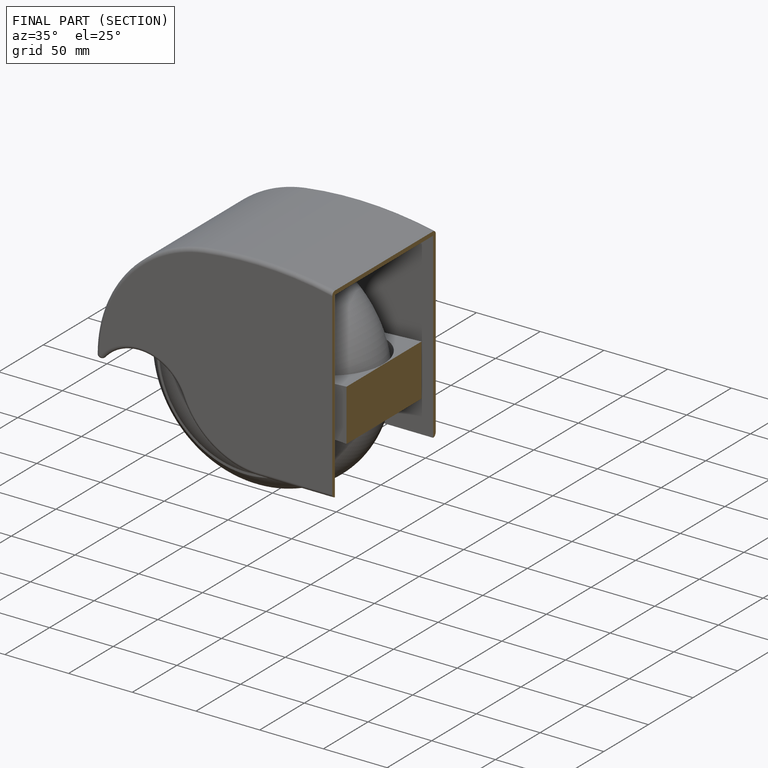
[diagram: finished part — half-section view (interior)]
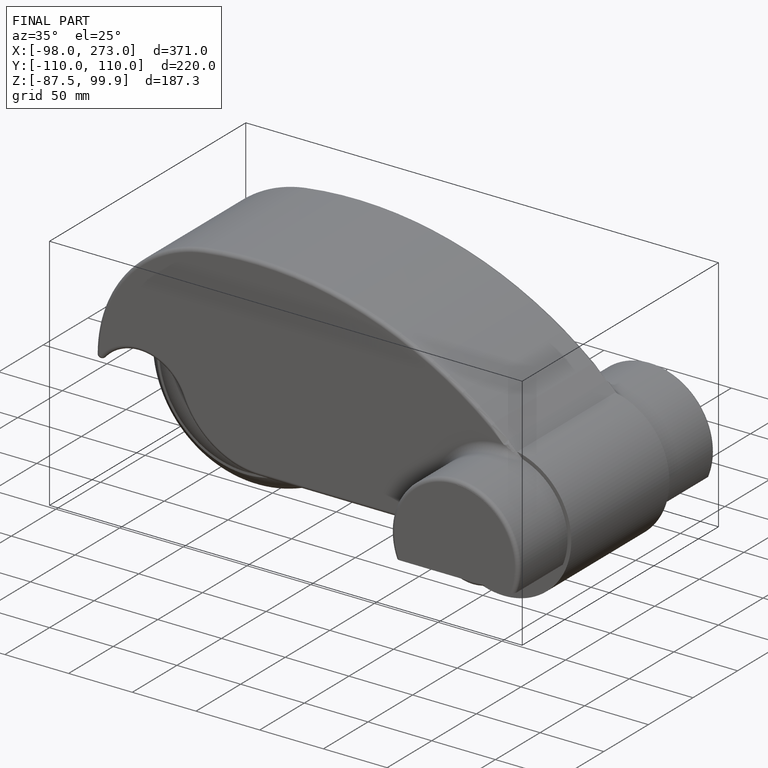
[diagram: finished part — iso view with bounding-box wireframe]
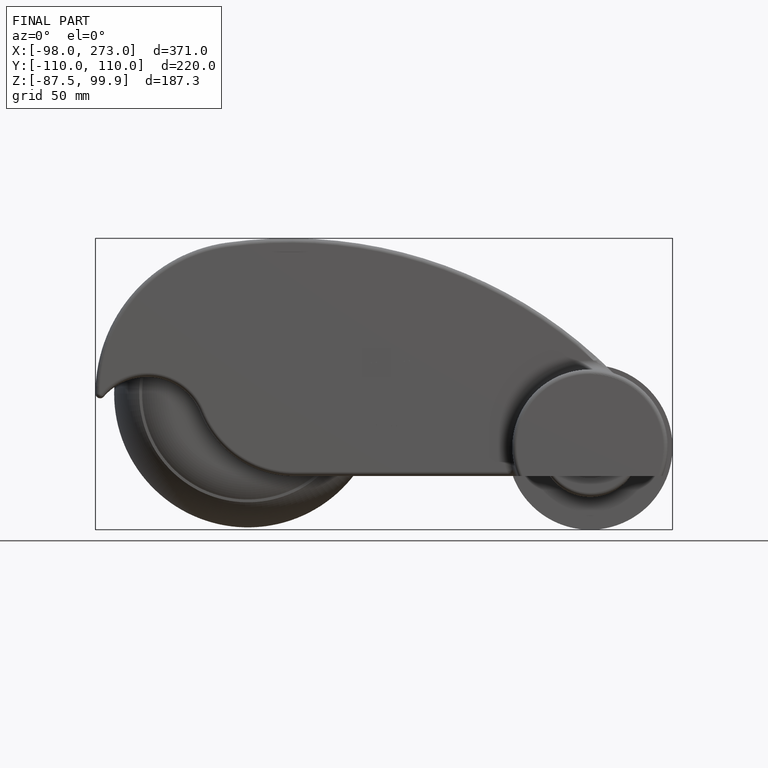
[diagram: finished part — front view with bounding-box wireframe]
